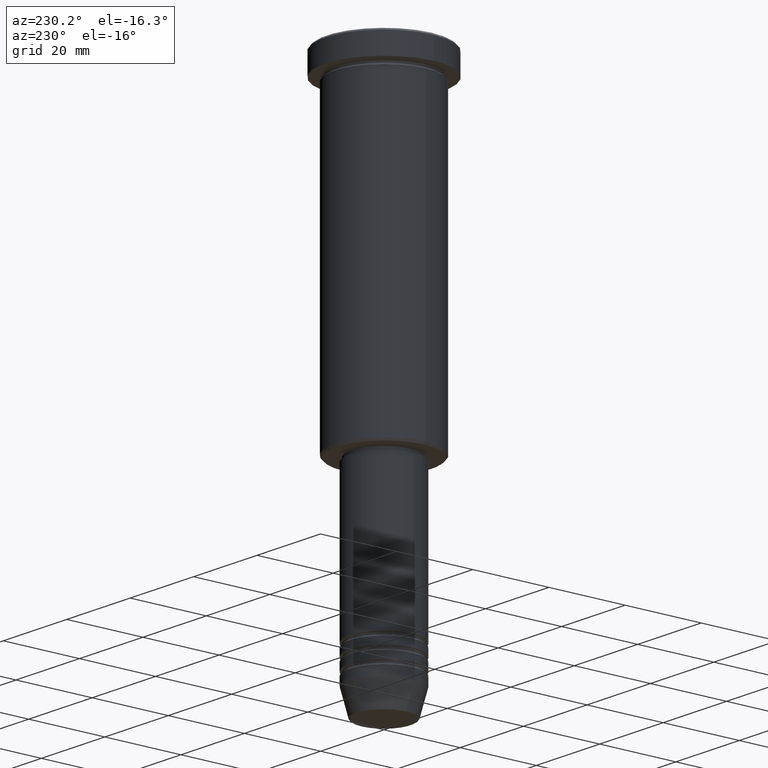
[diagram: clean part render]
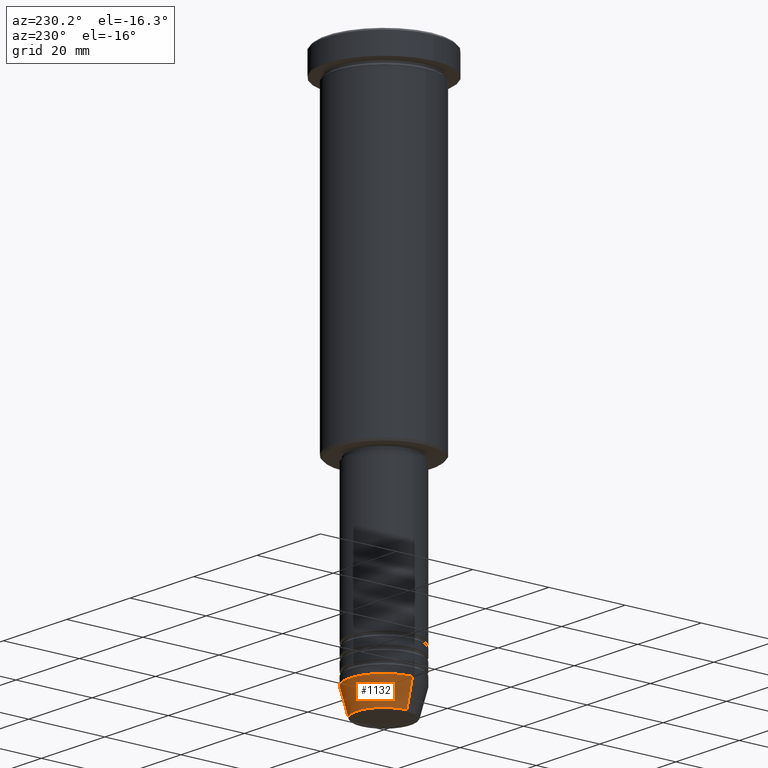
[diagram: same view with one face highlighted and labeled with its STEP entity id]
A machine part, auxiliary view. The second image highlights one B-rep face of the part: STEP entity #1132.
In plain terms, the highlighted conical surface has half-angle 15 deg.
Its self-contained STEP definition (entity closure, byte-faithful):
#35 = EDGE_CURVE ( 'NONE', #357, #1049, #297, .T. ) ;
#49 = AXIS2_PLACEMENT_3D ( 'NONE', #781, #504, #524 ) ;
#94 = DIRECTION ( 'NONE',  ( -0.000000000000000000, -0.000000000000000000, 1.000000000000000000 ) ) ;
#116 = CARTESIAN_POINT ( 'NONE',  ( -9.000000000000000000, 1.102182119232617714E-15, -134.0000000000000000 ) ) ;
#170 = CIRCLE ( 'NONE', #808, 7.223655072137188604 ) ;
#174 = VECTOR ( 'NONE', #823, 1000.000000000000000 ) ;
#215 = DIRECTION ( 'NONE',  ( 1.000000000000000000, 0.000000000000000000, 0.000000000000000000 ) ) ;
#219 = EDGE_CURVE ( 'NONE', #398, #552, #1083, .T. ) ;
#273 = CARTESIAN_POINT ( 'NONE',  ( 9.000000000000000000, 0.000000000000000000, -134.0000000000000000 ) ) ;
#284 = CONICAL_SURFACE ( 'NONE', #49, 9.000000000000000000, 0.2617993877991500740 ) ;
#292 = CARTESIAN_POINT ( 'NONE',  ( 7.223655072137188604, 0.000000000000000000, -140.6294095225512990 ) ) ;
#297 = LINE ( 'NONE', #116, #174 ) ;
#298 = CARTESIAN_POINT ( 'NONE',  ( 0.000000000000000000, 0.000000000000000000, -140.6294095225512990 ) ) ;
#357 = VERTEX_POINT ( 'NONE', #1010 ) ;
#362 = ORIENTED_EDGE ( 'NONE', *, *, #219, .F. ) ;
#372 = DIRECTION ( 'NONE',  ( 1.000000000000000000, 0.000000000000000000, 0.000000000000000000 ) ) ;
#398 = VERTEX_POINT ( 'NONE', #292 ) ;
#472 = CARTESIAN_POINT ( 'NONE',  ( 0.000000000000000000, 0.000000000000000000, -134.0000000000000000 ) ) ;
#486 = EDGE_CURVE ( 'NONE', #398, #357, #170, .T. ) ;
#504 = DIRECTION ( 'NONE',  ( -0.000000000000000000, -0.000000000000000000, 1.000000000000000000 ) ) ;
#518 = DIRECTION ( 'NONE',  ( 0.2588190451025213501, 0.000000000000000000, 0.9659258262890680902 ) ) ;
#524 = DIRECTION ( 'NONE',  ( 1.000000000000000000, 0.000000000000000000, 0.000000000000000000 ) ) ;
#526 = ORIENTED_EDGE ( 'NONE', *, *, #35, .T. ) ;
#552 = VERTEX_POINT ( 'NONE', #818 ) ;
#569 = DIRECTION ( 'NONE',  ( -0.000000000000000000, -0.000000000000000000, 1.000000000000000000 ) ) ;
#646 = CIRCLE ( 'NONE', #954, 9.000000000000000000 ) ;
#680 = FACE_OUTER_BOUND ( 'NONE', #769, .T. ) ;
#708 = VECTOR ( 'NONE', #518, 1000.000000000000000 ) ;
#769 = EDGE_LOOP ( 'NONE', ( #1109, #526, #1094, #362 ) ) ;
#781 = CARTESIAN_POINT ( 'NONE',  ( 0.000000000000000000, 0.000000000000000000, -134.0000000000000000 ) ) ;
#808 = AXIS2_PLACEMENT_3D ( 'NONE', #298, #94, #372 ) ;
#818 = CARTESIAN_POINT ( 'NONE',  ( 9.000000000000000000, 0.000000000000000000, -134.0000000000000000 ) ) ;
#823 = DIRECTION ( 'NONE',  ( -0.2588190451025213501, 3.169619151431772337E-17, 0.9659258262890680902 ) ) ;
#938 = EDGE_CURVE ( 'NONE', #552, #1049, #646, .T. ) ;
#954 = AXIS2_PLACEMENT_3D ( 'NONE', #472, #569, #215 ) ;
#959 = CARTESIAN_POINT ( 'NONE',  ( -9.000000000000000000, 1.102182119232617714E-15, -134.0000000000000000 ) ) ;
#1010 = CARTESIAN_POINT ( 'NONE',  ( -7.223655072137189492, 9.934123627281765110E-16, -140.6294095225512990 ) ) ;
#1049 = VERTEX_POINT ( 'NONE', #959 ) ;
#1083 = LINE ( 'NONE', #273, #708 ) ;
#1094 = ORIENTED_EDGE ( 'NONE', *, *, #938, .F. ) ;
#1109 = ORIENTED_EDGE ( 'NONE', *, *, #486, .T. ) ;
#1132 = ADVANCED_FACE ( 'NONE', ( #680 ), #284, .T. ) ;